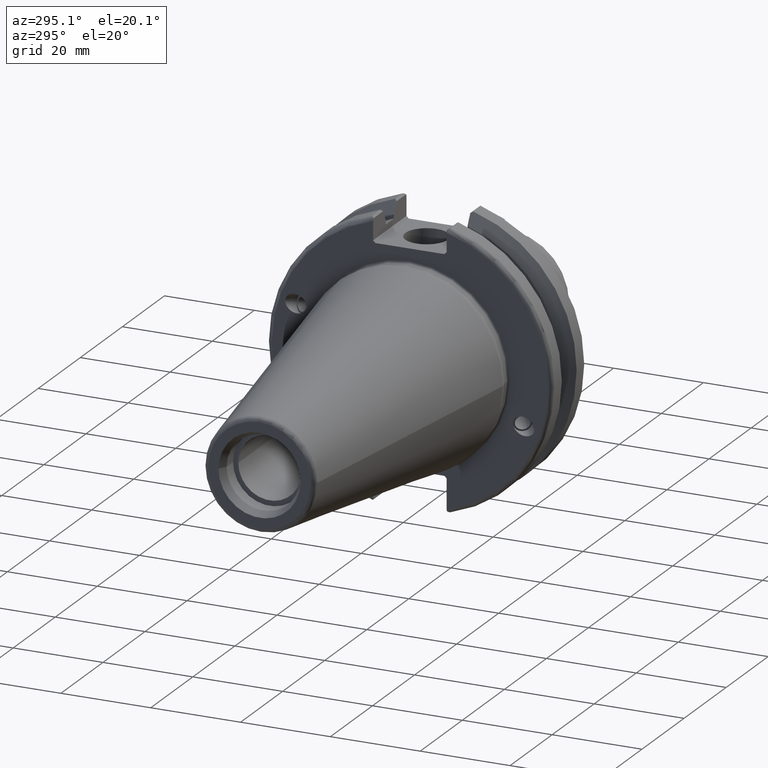
[diagram: clean part render]
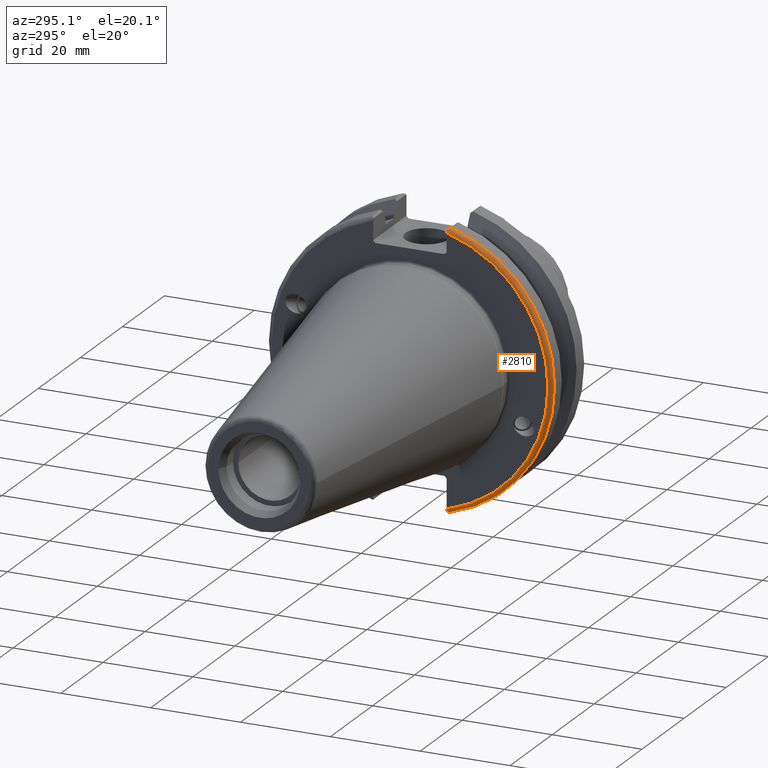
[diagram: same view with one face highlighted and labeled with its STEP entity id]
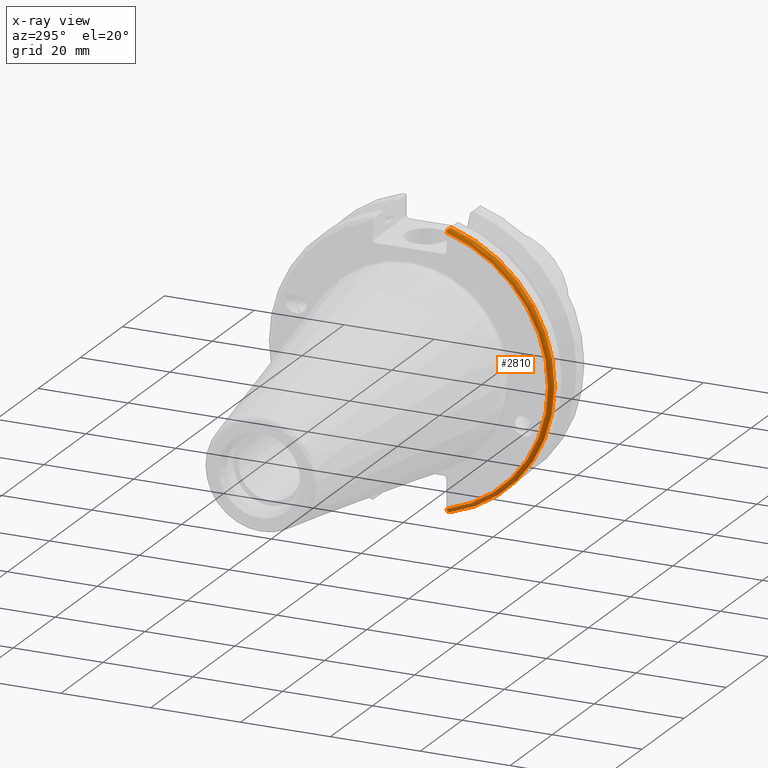
[diagram: x-ray of the same camera — body ghosted, the highlighted face saturated]
A machine part, auxiliary view. The second image highlights one B-rep face of the part: STEP entity #2810.
The next image is the same camera in x-ray: the body ghosted, the highlighted face saturated — about 0% of this face is hidden behind the body in this view.
In plain terms, the highlighted toroidal blend (fillet) surface has major radius 30.75 mm and minor (blend) radius 1 mm.
Its self-contained STEP definition (entity closure, byte-faithful):
#440=CARTESIAN_POINT('',(3.175E0,0.E0,0.E0));
#441=DIRECTION('',(-1.E0,0.E0,0.E0));
#442=DIRECTION('',(0.E0,-2.663414634146E-1,-9.638787397106E-1));
#443=AXIS2_PLACEMENT_3D('',#440,#441,#442);
#529=CARTESIAN_POINT('',(4.175E0,0.E0,0.E0));
#530=DIRECTION('',(-1.E0,0.E0,0.E0));
#531=DIRECTION('',(0.E0,-2.731353772607E-1,-9.619756055580E-1));
#532=AXIS2_PLACEMENT_3D('',#529,#530,#531);
#534=CARTESIAN_POINT('',(4.175E0,-8.672048228027E0,-3.054272547647E1));
#535=CARTESIAN_POINT('',(4.093572535836E0,-8.672048228027E0,-3.054272547647E1));
#536=CARTESIAN_POINT('',(3.933398704895E0,-8.651849986155E0,-3.052733847632E1));
#537=CARTESIAN_POINT('',(3.689634186734E0,-8.560627896164E0,-3.045784558080E1));
#538=CARTESIAN_POINT('',(3.477001062436E0,-8.404742884307E0,-3.033909253708E1));
#539=CARTESIAN_POINT('',(3.366137042232E0,-8.268017189340E0,-3.023493504150E1));
#540=CARTESIAN_POINT('',(3.319127725090E0,-8.19E0,-3.017550162589E1));
#550=CARTESIAN_POINT('',(3.319127725090E0,-8.19E0,3.017550162589E1));
#551=CARTESIAN_POINT('',(3.366020080876E0,-8.267823078965E0,3.023478716841E1));
#552=CARTESIAN_POINT('',(3.476603530088E0,-8.404315400749E0,3.033876688054E1));
#553=CARTESIAN_POINT('',(3.688894077099E0,-8.560215315144E0,3.045753127700E1));
#554=CARTESIAN_POINT('',(3.932736458200E0,-8.651728605609E0,3.052724600874E1));
#555=CARTESIAN_POINT('',(4.093298899591E0,-8.672048228027E0,3.054272547647E1));
#556=CARTESIAN_POINT('',(4.175E0,-8.672048228027E0,3.054272547647E1));
#581=CARTESIAN_POINT('',(3.175E0,-8.19E0,2.963927124610E1));
#582=CARTESIAN_POINT('',(3.175E0,-8.19E0,2.970021491639E1));
#583=CARTESIAN_POINT('',(3.186481474971E0,-8.19E0,2.982130388489E1));
#584=CARTESIAN_POINT('',(3.234911309555E0,-8.19E0,3.001000497750E1));
#585=CARTESIAN_POINT('',(3.287697705116E0,-8.19E0,3.012160766245E1));
#586=CARTESIAN_POINT('',(3.319127725090E0,-8.19E0,3.017550162589E1));
#624=CARTESIAN_POINT('',(3.319127725090E0,-8.19E0,-3.017550162589E1));
#625=CARTESIAN_POINT('',(3.287697548307E0,-8.19E0,-3.012160739357E1));
#626=CARTESIAN_POINT('',(3.234911048228E0,-8.19E0,-3.001000429245E1));
#627=CARTESIAN_POINT('',(3.186481360641E0,-8.19E0,-2.982130314403E1));
#628=CARTESIAN_POINT('',(3.175E0,-8.19E0,-2.970021459717E1));
#629=CARTESIAN_POINT('',(3.175E0,-8.19E0,-2.963927124610E1));
#2014=CARTESIAN_POINT('',(3.175E0,-8.19E0,-2.963927124610E1));
#2015=CARTESIAN_POINT('',(3.175E0,-8.19E0,2.963927124610E1));
#2016=VERTEX_POINT('',#2014);
#2017=VERTEX_POINT('',#2015);
#2084=VERTEX_POINT('',#586);
#2105=CARTESIAN_POINT('',(3.319127725090E0,-8.19E0,-3.017550162589E1));
#2106=VERTEX_POINT('',#2105);
#2107=VERTEX_POINT('',#534);
#2108=CARTESIAN_POINT('',(4.175E0,-8.672048228027E0,3.054272547647E1));
#2109=VERTEX_POINT('',#2108);
#2792=CARTESIAN_POINT('',(4.175E0,0.E0,0.E0));
#2793=DIRECTION('',(1.E0,0.E0,0.E0));
#2794=DIRECTION('',(0.E0,0.E0,-1.E0));
#2795=AXIS2_PLACEMENT_3D('',#2792,#2793,#2794);
#2796=TOROIDAL_SURFACE('',#2795,3.075E1,1.E0);
#2798=ORIENTED_EDGE('',*,*,#2797,.T.);
#2800=ORIENTED_EDGE('',*,*,#2799,.T.);
#2801=ORIENTED_EDGE('',*,*,#2749,.T.);
#2803=ORIENTED_EDGE('',*,*,#2802,.T.);
#2805=ORIENTED_EDGE('',*,*,#2804,.T.);
#2807=ORIENTED_EDGE('',*,*,#2806,.F.);
#2808=EDGE_LOOP('',(#2798,#2800,#2801,#2803,#2805,#2807));
#2809=FACE_OUTER_BOUND('',#2808,.F.);
#2810=ADVANCED_FACE('',(#2809),#2796,.T.);
#444=CIRCLE('',#443,3.075E1);
#533=CIRCLE('',#532,3.175E1);
#541=B_SPLINE_CURVE_WITH_KNOTS('',3,(#534,#535,#536,#537,#538,#539,#540),
.UNSPECIFIED.,.F.,.F.,(4,1,1,1,4),(0.E0,2.5E-1,5.E-1,7.5E-1,1.E0),
.UNSPECIFIED.);
#557=B_SPLINE_CURVE_WITH_KNOTS('',3,(#550,#551,#552,#553,#554,#555,#556),
.UNSPECIFIED.,.F.,.F.,(4,1,1,1,4),(0.E0,2.5E-1,5.E-1,7.5E-1,1.E0),
.UNSPECIFIED.);
#587=B_SPLINE_CURVE_WITH_KNOTS('',3,(#581,#582,#583,#584,#585,#586),
.UNSPECIFIED.,.F.,.F.,(4,1,1,4),(0.E0,3.333333333333E-1,6.666666666667E-1,1.E0),
.UNSPECIFIED.);
#630=B_SPLINE_CURVE_WITH_KNOTS('',3,(#624,#625,#626,#627,#628,#629),
.UNSPECIFIED.,.F.,.F.,(4,1,1,4),(0.E0,3.333333333333E-1,6.666666666667E-1,1.E0),
.UNSPECIFIED.);
#2749=EDGE_CURVE('',#2016,#2017,#444,.T.);
#2797=EDGE_CURVE('',#2107,#2106,#541,.T.);
#2799=EDGE_CURVE('',#2106,#2016,#630,.T.);
#2802=EDGE_CURVE('',#2017,#2084,#587,.T.);
#2804=EDGE_CURVE('',#2084,#2109,#557,.T.);
#2806=EDGE_CURVE('',#2107,#2109,#533,.T.);